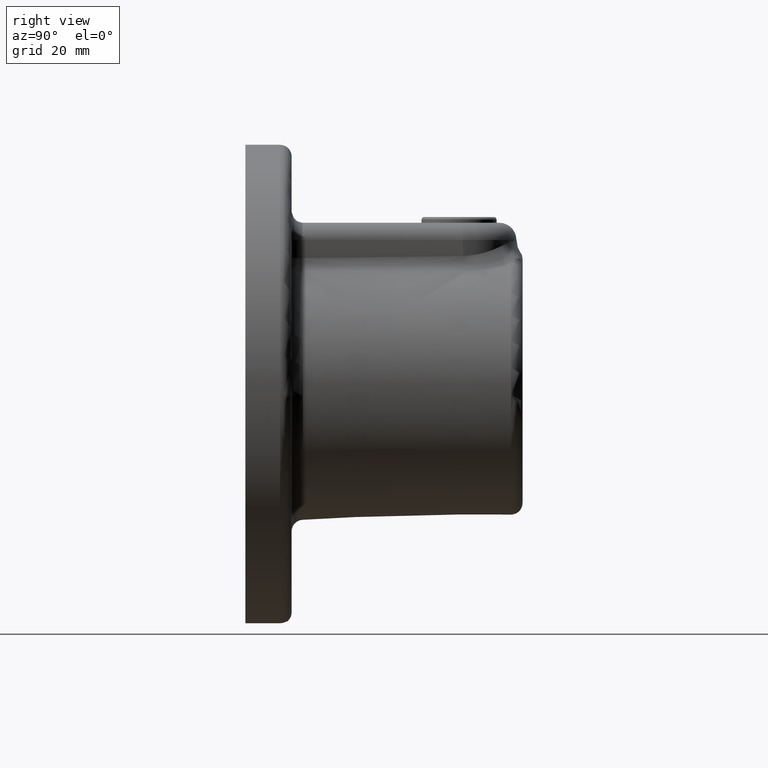
[diagram: clean part render]
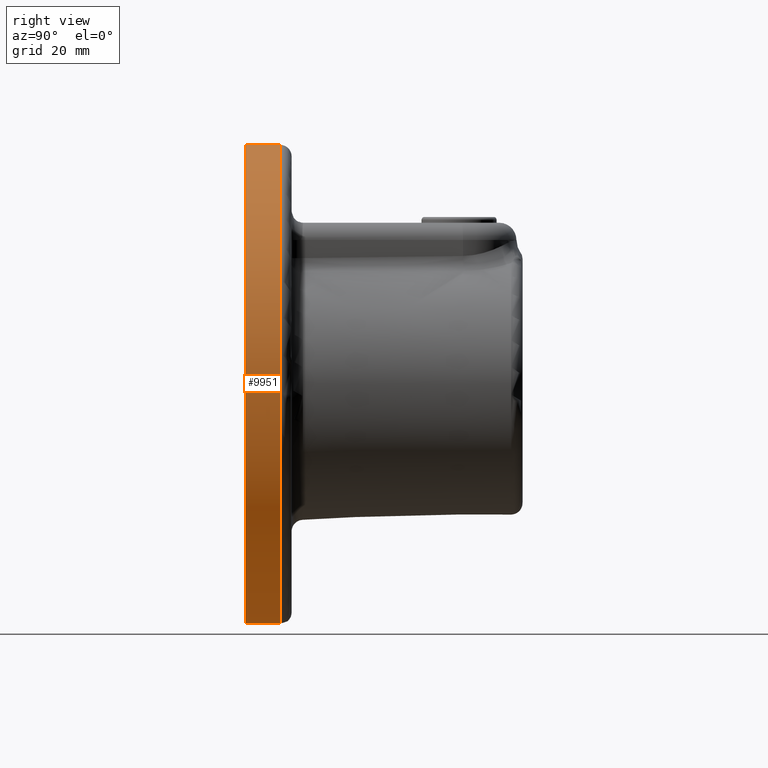
[diagram: same view with one face highlighted and labeled with its STEP entity id]
A machine part, right view. The second image highlights one B-rep face of the part: STEP entity #9951.
In plain terms, the highlighted cylindrical surface (bore or boss wall) has radius 41.5 mm, axis along (-0, -1, -0).
Its self-contained STEP definition (entity closure, byte-faithful):
#643 = CARTESIAN_POINT ( 'NONE',  ( 0.000000000000000000, 8.000000000000000000, 0.000000000000000000 ) ) ;
#1219 = FACE_OUTER_BOUND ( 'NONE', #13560, .T. ) ;
#2112 = CYLINDRICAL_SURFACE ( 'NONE', #13703, 41.50000000000000000 ) ;
#2319 = CARTESIAN_POINT ( 'NONE',  ( 0.000000000000000000, 0.000000000000000000, 0.000000000000000000 ) ) ;
#3032 = DIRECTION ( 'NONE',  ( -0.000000000000000000, -1.000000000000000000, -0.000000000000000000 ) ) ;
#3509 = ORIENTED_EDGE ( 'NONE', *, *, #8878, .T. ) ;
#5280 = VERTEX_POINT ( 'NONE', #8784 ) ;
#5603 = DIRECTION ( 'NONE',  ( 0.000000000000000000, 0.000000000000000000, 1.000000000000000000 ) ) ;
#5906 = EDGE_CURVE ( 'NONE', #11802, #11802, #6245, .T. ) ;
#6245 = CIRCLE ( 'NONE', #12939, 41.50000000000000000 ) ;
#6808 = DIRECTION ( 'NONE',  ( 0.000000000000000000, 0.000000000000000000, 1.000000000000000000 ) ) ;
#7738 = ORIENTED_EDGE ( 'NONE', *, *, #5906, .T. ) ;
#8784 = CARTESIAN_POINT ( 'NONE',  ( 0.000000000000000000, 0.000000000000000000, 41.50000000000000000 ) ) ;
#8878 = EDGE_CURVE ( 'NONE', #5280, #5280, #10326, .T. ) ;
#9951 = ADVANCED_FACE ( 'NONE', ( #12378, #1219 ), #2112, .T. ) ;
#9971 = DIRECTION ( 'NONE',  ( 0.000000000000000000, 1.000000000000000000, 0.000000000000000000 ) ) ;
#10151 = CARTESIAN_POINT ( 'NONE',  ( 0.000000000000000000, 6.000000000000000000, 0.000000000000000000 ) ) ;
#10326 = CIRCLE ( 'NONE', #11603, 41.50000000000000000 ) ;
#11283 = DIRECTION ( 'NONE',  ( -0.000000000000000000, -1.000000000000000000, -0.000000000000000000 ) ) ;
#11603 = AXIS2_PLACEMENT_3D ( 'NONE', #2319, #9971, #5603 ) ;
#11748 = EDGE_LOOP ( 'NONE', ( #7738 ) ) ;
#11802 = VERTEX_POINT ( 'NONE', #14199 ) ;
#12378 = FACE_OUTER_BOUND ( 'NONE', #11748, .T. ) ;
#12939 = AXIS2_PLACEMENT_3D ( 'NONE', #10151, #11283, #6808 ) ;
#13560 = EDGE_LOOP ( 'NONE', ( #3509 ) ) ;
#13703 = AXIS2_PLACEMENT_3D ( 'NONE', #643, #3032, #13997 ) ;
#13997 = DIRECTION ( 'NONE',  ( 0.000000000000000000, 0.000000000000000000, -1.000000000000000000 ) ) ;
#14199 = CARTESIAN_POINT ( 'NONE',  ( 0.000000000000000000, 6.000000000000000000, 41.50000000000000000 ) ) ;